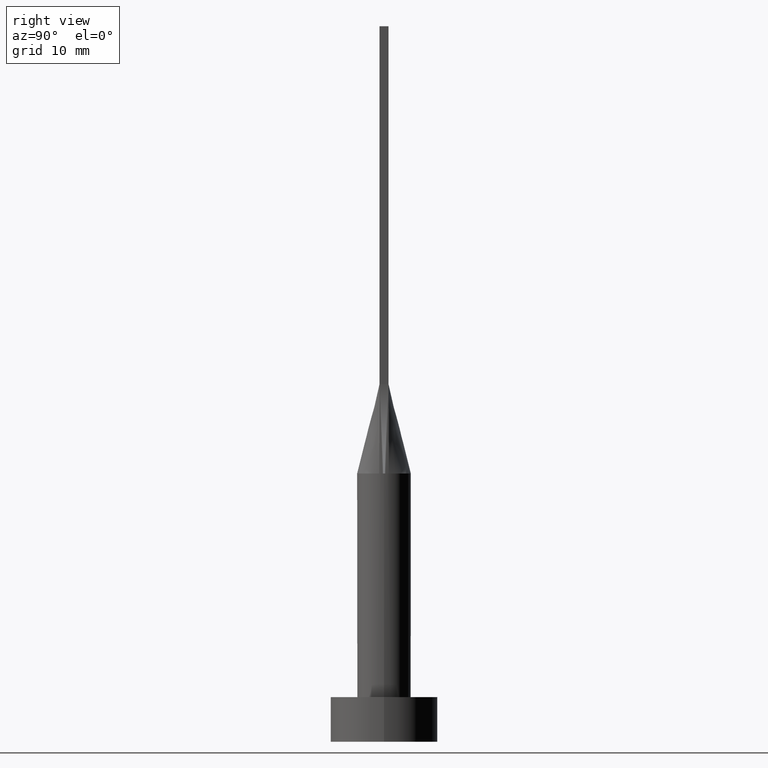
[diagram: clean part render]
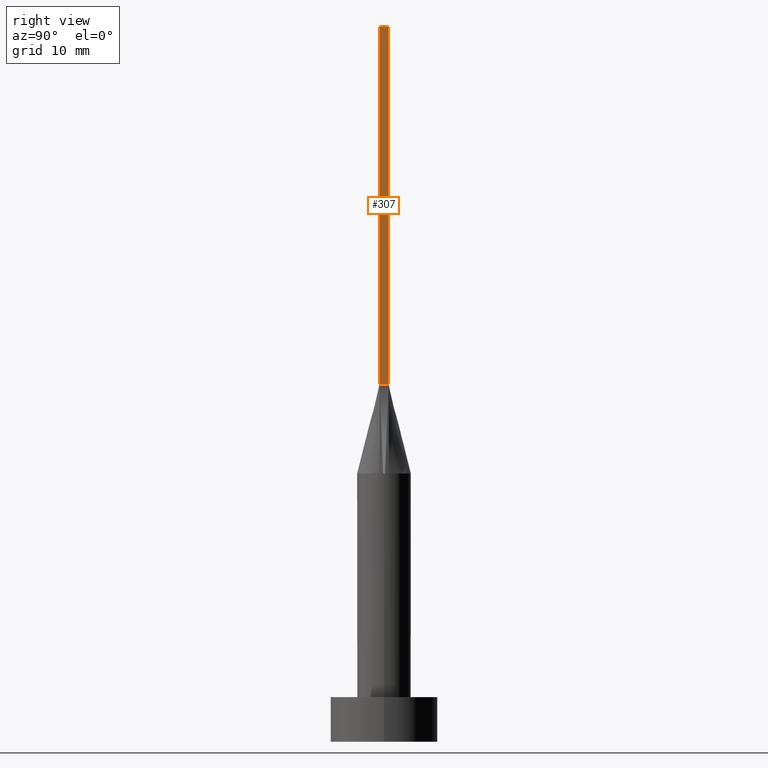
[diagram: same view with one face highlighted and labeled with its STEP entity id]
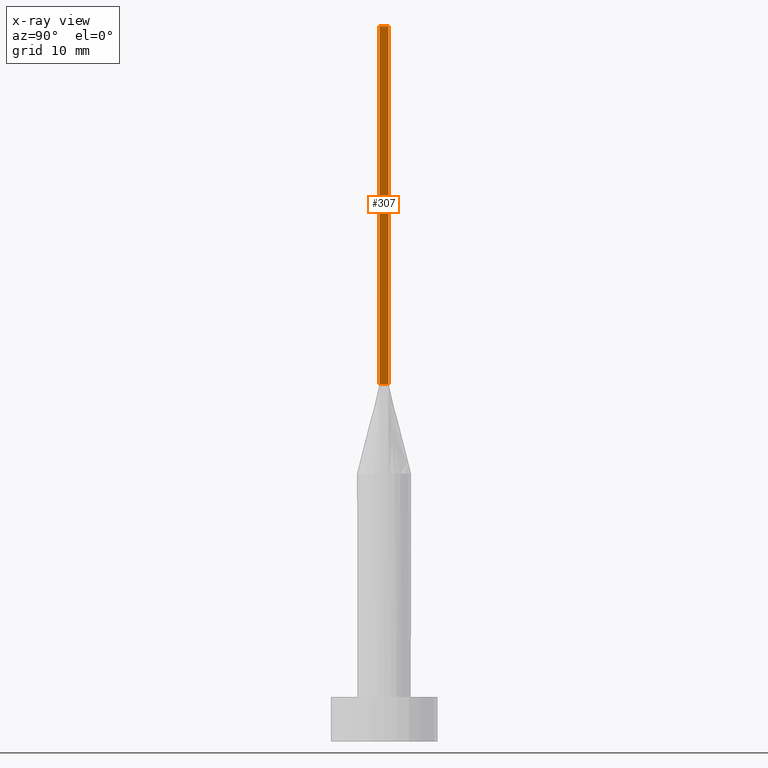
[diagram: x-ray of the same camera — body ghosted, the highlighted face saturated]
A machine part, right view. The second image highlights one B-rep face of the part: STEP entity #307.
The next image is the same camera in x-ray: the body ghosted, the highlighted face saturated — about 0% of this face is hidden behind the body in this view.
In plain terms, the highlighted planar face has unit normal (-1, 0, 0).
Its self-contained STEP definition (entity closure, byte-faithful):
#17 = LINE ( 'NONE', #389, #407 ) ;
#65 = EDGE_CURVE ( 'NONE', #535, #359, #289, .T. ) ;
#111 = CARTESIAN_POINT ( 'NONE',  ( 2.750000000000000000, -0.4999999999999997780, 80.00000000000000000 ) ) ;
#115 = EDGE_LOOP ( 'NONE', ( #250, #478, #142, #470 ) ) ;
#142 = ORIENTED_EDGE ( 'NONE', *, *, #226, .F. ) ;
#210 = EDGE_CURVE ( 'NONE', #531, #359, #17, .T. ) ;
#218 = CARTESIAN_POINT ( 'NONE',  ( 2.750000000000000000, -0.4999999999999997780, 40.00000000000000000 ) ) ;
#223 = DIRECTION ( 'NONE',  ( -0.000000000000000000, -0.000000000000000000, -1.000000000000000000 ) ) ;
#224 = CARTESIAN_POINT ( 'NONE',  ( 2.750000000000000000, 0.5000000000000002220, 80.00000000000000000 ) ) ;
#226 = EDGE_CURVE ( 'NONE', #550, #535, #322, .T. ) ;
#228 = DIRECTION ( 'NONE',  ( 0.000000000000000000, 0.000000000000000000, 1.000000000000000000 ) ) ;
#231 = CARTESIAN_POINT ( 'NONE',  ( 2.750000000000000000, -0.4999999999999997780, 80.00000000000000000 ) ) ;
#250 = ORIENTED_EDGE ( 'NONE', *, *, #210, .T. ) ;
#275 = DIRECTION ( 'NONE',  ( -1.000000000000000000, 0.000000000000000000, 0.000000000000000000 ) ) ;
#286 = DIRECTION ( 'NONE',  ( 0.000000000000000000, 1.000000000000000000, 0.000000000000000000 ) ) ;
#289 = LINE ( 'NONE', #552, #342 ) ;
#307 = ADVANCED_FACE ( 'NONE', ( #319 ), #447, .F. ) ;
#319 = FACE_OUTER_BOUND ( 'NONE', #115, .T. ) ;
#322 = LINE ( 'NONE', #231, #484 ) ;
#342 = VECTOR ( 'NONE', #223, 1000.000000000000000 ) ;
#359 = VERTEX_POINT ( 'NONE', #375 ) ;
#360 = CARTESIAN_POINT ( 'NONE',  ( 2.750000000000000000, -0.4999999999999997780, 80.00000000000000000 ) ) ;
#375 = CARTESIAN_POINT ( 'NONE',  ( 2.750000000000000000, 0.5000000000000002220, 40.00000000000000000 ) ) ;
#389 = CARTESIAN_POINT ( 'NONE',  ( 2.750000000000000000, 0.5000000000000002220, 40.00000000000000000 ) ) ;
#394 = VECTOR ( 'NONE', #526, 1000.000000000000000 ) ;
#407 = VECTOR ( 'NONE', #564, 1000.000000000000000 ) ;
#438 = CARTESIAN_POINT ( 'NONE',  ( 2.750000000000000000, -0.4999999999999997780, 80.00000000000000000 ) ) ;
#447 = PLANE ( 'NONE',  #534 ) ;
#470 = ORIENTED_EDGE ( 'NONE', *, *, #555, .T. ) ;
#478 = ORIENTED_EDGE ( 'NONE', *, *, #65, .F. ) ;
#484 = VECTOR ( 'NONE', #286, 1000.000000000000000 ) ;
#526 = DIRECTION ( 'NONE',  ( -0.000000000000000000, -0.000000000000000000, -1.000000000000000000 ) ) ;
#531 = VERTEX_POINT ( 'NONE', #218 ) ;
#534 = AXIS2_PLACEMENT_3D ( 'NONE', #111, #275, #228 ) ;
#535 = VERTEX_POINT ( 'NONE', #224 ) ;
#550 = VERTEX_POINT ( 'NONE', #438 ) ;
#552 = CARTESIAN_POINT ( 'NONE',  ( 2.750000000000000000, 0.5000000000000002220, 80.00000000000000000 ) ) ;
#555 = EDGE_CURVE ( 'NONE', #550, #531, #570, .T. ) ;
#564 = DIRECTION ( 'NONE',  ( -0.000000000000000000, 1.000000000000000000, -0.000000000000000000 ) ) ;
#570 = LINE ( 'NONE', #360, #394 ) ;